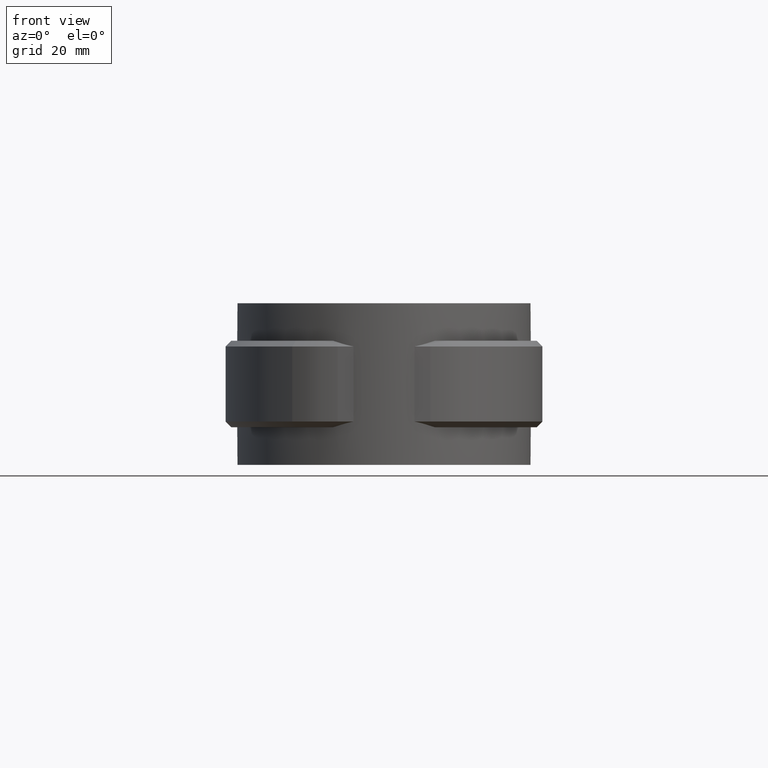
[diagram: clean part render]
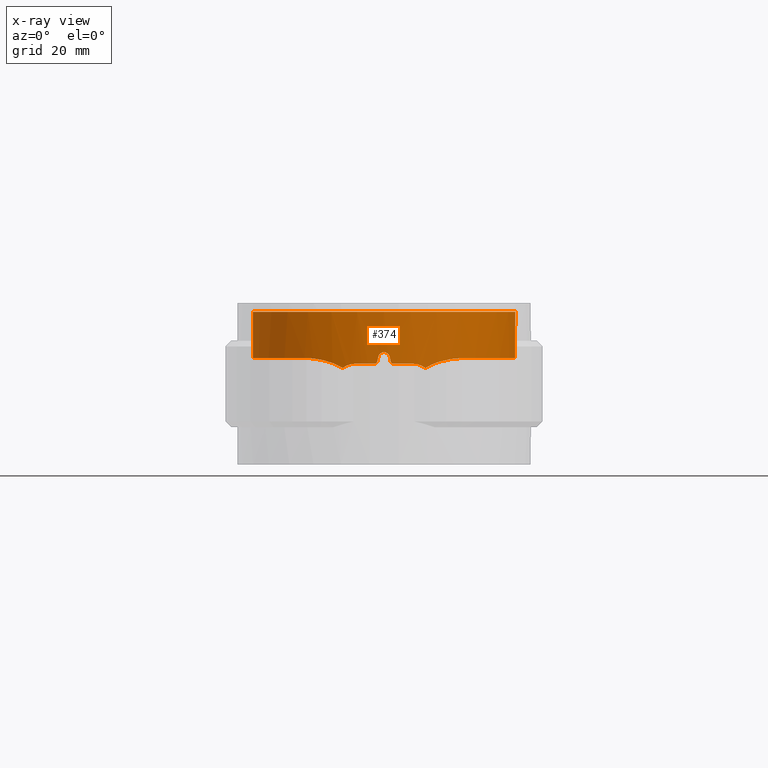
[diagram: x-ray — body ghosted, one internal face saturated and labeled with its STEP entity id]
A machine part, front view, then the same camera in x-ray: the body is ghosted and one INTERNAL B-rep face — a face not visible from any outside direction — is saturated and labeled: STEP entity #374.
In plain terms, the highlighted cylindrical surface (partial cylindrical patch) has radius 22.8 mm, axis along (0, 0, 1).
Its self-contained STEP definition (entity closure, byte-faithful):
#374 = ADVANCED_FACE( '', ( #725 ), #726, .F. );
#725 = FACE_OUTER_BOUND( '', #1642, .T. );
#726 = CYLINDRICAL_SURFACE( '', #1643, 22.8000000000000 );
#1642 = EDGE_LOOP( '', ( #2991, #2992, #2993, #2994, #2995, #2996, #2997, #2998, #2999, #3000, #3001, #3002, #3003, #3004, #3005, #3006 ) );
#1643 = AXIS2_PLACEMENT_3D( '', #3007, #3008, #3009 );
#2991 = ORIENTED_EDGE( '', *, *, #6664, .T. );
#2992 = ORIENTED_EDGE( '', *, *, #6633, .T. );
#2993 = ORIENTED_EDGE( '', *, *, #6637, .T. );
#2994 = ORIENTED_EDGE( '', *, *, #6668, .T. );
#2995 = ORIENTED_EDGE( '', *, *, #6669, .T. );
#2996 = ORIENTED_EDGE( '', *, *, #6670, .T. );
#2997 = ORIENTED_EDGE( '', *, *, #6671, .T. );
#2998 = ORIENTED_EDGE( '', *, *, #6672, .T. );
#2999 = ORIENTED_EDGE( '', *, *, #6673, .T. );
#3000 = ORIENTED_EDGE( '', *, *, #6674, .T. );
#3001 = ORIENTED_EDGE( '', *, *, #6665, .T. );
#3002 = ORIENTED_EDGE( '', *, *, #6657, .T. );
#3003 = ORIENTED_EDGE( '', *, *, #6675, .F. );
#3004 = ORIENTED_EDGE( '', *, *, #6624, .T. );
#3005 = ORIENTED_EDGE( '', *, *, #6676, .T. );
#3006 = ORIENTED_EDGE( '', *, *, #6653, .T. );
#3007 = CARTESIAN_POINT( '', ( 0.000000000000000, 0.000000000000000, 0.000000000000000 ) );
#3008 = DIRECTION( '', ( 0.000000000000000, 0.000000000000000, 1.00000000000000 ) );
#3009 = DIRECTION( '', ( 1.00000000000000, -6.12303176911189E-017, 0.000000000000000 ) );
#6624 = EDGE_CURVE( '', #7597, #7595, #7598, .T. );
#6633 = EDGE_CURVE( '', #7614, #7612, #7615, .T. );
#6637 = EDGE_CURVE( '', #7612, #7619, #7621, .T. );
#6653 = EDGE_CURVE( '', #7649, #7647, #7650, .T. );
#6657 = EDGE_CURVE( '', #7656, #7657, #7658, .T. );
#6664 = EDGE_CURVE( '', #7647, #7614, #7669, .T. );
#6665 = EDGE_CURVE( '', #7670, #7656, #7671, .T. );
#6668 = EDGE_CURVE( '', #7619, #7675, #7676, .T. );
#6669 = EDGE_CURVE( '', #7675, #7677, #7678, .T. );
#6670 = EDGE_CURVE( '', #7677, #7679, #7680, .T. );
#6671 = EDGE_CURVE( '', #7679, #7681, #7682, .T. );
#6672 = EDGE_CURVE( '', #7681, #7683, #7684, .T. );
#6673 = EDGE_CURVE( '', #7683, #7685, #7686, .T. );
#6674 = EDGE_CURVE( '', #7685, #7670, #7687, .T. );
#6675 = EDGE_CURVE( '', #7597, #7657, #7688, .T. );
#6676 = EDGE_CURVE( '', #7595, #7649, #7689, .T. );
#7595 = VERTEX_POINT( '', #9323 );
#7597 = VERTEX_POINT( '', #9325 );
#7598 = CIRCLE( '', #9326, 22.8000000000000 );
#7612 = VERTEX_POINT( '', #9372 );
#7614 = VERTEX_POINT( '', #9375 );
#7615 = B_SPLINE_CURVE_WITH_KNOTS( '', 3, ( #9376, #9377, #9378, #9379, #9380, #9381, #9382, #9383, #9384, #9385 ), .UNSPECIFIED., .F., .F., ( 4, 2, 2, 2, 4 ), ( 0.00878224476626473, 0.00938128739669219, 0.00998033002711966, 0.0105793726575471, 0.0111784152879746 ), .UNSPECIFIED. );
#7619 = VERTEX_POINT( '', #9411 );
#7621 = CIRCLE( '', #9414, 22.8000000000000 );
#7647 = VERTEX_POINT( '', #9678 );
#7649 = VERTEX_POINT( '', #9686 );
#7650 = B_SPLINE_CURVE_WITH_KNOTS( '', 3, ( #9687, #9688, #9689, #9690, #9691, #9692, #9693, #9694, #9695, #9696, #9697, #9698, #9699, #9700, #9701, #9702, #9703, #9704, #9705, #9706, #9707, #9708, #9709, #9710, #9711, #9712, #9713, #9714, #9715, #9716, #9717, #9718, #9719, #9720, #9721, #9722, #9723, #9724, #9725, #9726, #9727, #9728, #9729, #9730 ), .UNSPECIFIED., .F., .F., ( 4, 2, 2, 2, 2, 2, 2, 2, 2, 2, 2, 2, 2, 2, 2, 2, 2, 2, 2, 2, 2, 4 ), ( 5.55382496713543E-018, 0.00316036493218765, 0.00632072986437529, 0.00790091233046911, 0.00948109479656293, 0.0126414597287506, 0.0142216421948444, 0.0158018246609382, 0.0189621895931258, 0.0221225545253135, 0.0237027369914073, 0.0252829194575011, 0.0284432843896887, 0.0300234668557825, 0.0316036493218763, 0.0347640142540640, 0.0379243791862516, 0.0395045616523454, 0.0410847441184392, 0.0442451090506269, 0.0474054739828145, 0.0505658389150021 ), .UNSPECIFIED. );
#7656 = VERTEX_POINT( '', #9766 );
#7657 = VERTEX_POINT( '', #9767 );
#7658 = B_SPLINE_CURVE_WITH_KNOTS( '', 3, ( #9768, #9769, #9770, #9771, #9772, #9773, #9774, #9775, #9776, #9777, #9778, #9779, #9780, #9781, #9782, #9783, #9784, #9785, #9786, #9787, #9788, #9789, #9790, #9791, #9792, #9793, #9794, #9795, #9796, #9797, #9798, #9799, #9800, #9801, #9802, #9803, #9804, #9805, #9806, #9807, #9808, #9809, #9810, #9811 ), .UNSPECIFIED., .F., .F., ( 4, 2, 2, 2, 2, 2, 2, 2, 2, 2, 2, 2, 2, 2, 2, 2, 2, 2, 2, 2, 2, 4 ), ( 8.67361737988404E-018, 0.00316036486799006, 0.00632072973598011, 0.00790091216997514, 0.00948109460397017, 0.0126414594719602, 0.0142216419059553, 0.0158018243399503, 0.0189621892079404, 0.0221225540759304, 0.0237027365099254, 0.0252829189439205, 0.0284432838119105, 0.0300234662459056, 0.0316036486799006, 0.0347640135478906, 0.0379243784158807, 0.0395045608498757, 0.0410847432838707, 0.0442451081518608, 0.0474054730198508, 0.0505658378878408 ), .UNSPECIFIED. );
#7669 = B_SPLINE_CURVE_WITH_KNOTS( '', 3, ( #9910, #9911, #9912, #9913, #9914, #9915, #9916, #9917, #9918, #9919 ), .UNSPECIFIED., .F., .F., ( 4, 2, 2, 2, 4 ), ( 1.73472347597681E-018, 0.00193736207508401, 0.00387472415016801, 0.00581208622525202, 0.00774944830033603 ), .UNSPECIFIED. );
#7670 = VERTEX_POINT( '', #9920 );
#7671 = B_SPLINE_CURVE_WITH_KNOTS( '', 3, ( #9921, #9922, #9923, #9924, #9925, #9926, #9927, #9928, #9929, #9930 ), .UNSPECIFIED., .F., .F., ( 4, 2, 2, 2, 4 ), ( 2.83169498770614E-005, 0.00195331296766432, 0.00387830898545157, 0.00580330500323883, 0.00772830102102609 ), .UNSPECIFIED. );
#7675 = VERTEX_POINT( '', #9960 );
#7676 = B_SPLINE_CURVE_WITH_KNOTS( '', 3, ( #9961, #9962, #9963, #9964, #9965, #9966 ), .UNSPECIFIED., .F., .F., ( 4, 2, 4 ), ( 8.20849171219253E-018, 0.000336161295859166, 0.000672322591718323 ), .UNSPECIFIED. );
#7677 = VERTEX_POINT( '', #9967 );
#7678 = ELLIPSE( '', #9968, 103.866719651455, 22.8000000000000 );
#7679 = VERTEX_POINT( '', #9969 );
#7680 = B_SPLINE_CURVE_WITH_KNOTS( '', 3, ( #9970, #9971, #9972, #9973, #9974, #9975, #9976, #9977, #9978, #9979 ), .UNSPECIFIED., .F., .F., ( 4, 2, 2, 2, 4 ), ( 0.000000000000000, 0.000671637729633645, 0.00134327545926729, 0.00201491318890094, 0.00268655091853458 ), .UNSPECIFIED. );
#7681 = VERTEX_POINT( '', #9980 );
#7682 = ELLIPSE( '', #9981, 103.866772636280, 22.8000000000000 );
#7683 = VERTEX_POINT( '', #9982 );
#7684 = B_SPLINE_CURVE_WITH_KNOTS( '', 3, ( #9983, #9984, #9985, #9986, #9987, #9988 ), .UNSPECIFIED., .F., .F., ( 4, 2, 4 ), ( 4.33680868994202E-019, 0.000336168727832305, 0.000672337455664609 ), .UNSPECIFIED. );
#7685 = VERTEX_POINT( '', #9989 );
#7686 = CIRCLE( '', #9990, 22.8000000000000 );
#7687 = B_SPLINE_CURVE_WITH_KNOTS( '', 3, ( #9991, #9992, #9993, #9994, #9995, #9996 ), .UNSPECIFIED., .F., .F., ( 4, 2, 4 ), ( 3.46944695195361E-018, 0.00120052443283091, 0.00240104886566181 ), .UNSPECIFIED. );
#7688 = LINE( '', #9997, #9998 );
#7689 = LINE( '', #9999, #10000 );
#9323 = CARTESIAN_POINT( '', ( 5.97580645161292, 22.0029483763622, 0.000000000000000 ) );
#9325 = CARTESIAN_POINT( '', ( -5.97580645161290, 22.0029483763623, 0.000000000000000 ) );
#9326 = AXIS2_PLACEMENT_3D( '', #13062, #13063, #13064 );
#9372 = CARTESIAN_POINT( '', ( 5.00000000000000, -22.2449994380760, -9.00000000000000 ) );
#9375 = CARTESIAN_POINT( '', ( 7.16637408003806, -21.6444700222703, -9.75103231278736 ) );
#9376 = CARTESIAN_POINT( '', ( 7.16637408003805, -21.6444700222703, -9.75103231278736 ) );
#9377 = CARTESIAN_POINT( '', ( 7.01425588643786, -21.6948355834782, -9.63115279828793 ) );
#9378 = CARTESIAN_POINT( '', ( 6.85295634183912, -21.7464683795382, -9.52435394654657 ) );
#9379 = CARTESIAN_POINT( '', ( 6.51144351892544, -21.8511555965640, -9.33717608310341 ) );
#9380 = CARTESIAN_POINT( '', ( 6.33248877281890, -21.9037786169752, -9.25780582647430 ) );
#9381 = CARTESIAN_POINT( '', ( 5.96742728007836, -22.0060387943018, -9.13081109964244 ) );
#9382 = CARTESIAN_POINT( '', ( 5.78002781723296, -22.0560807326356, -9.08244496513620 ) );
#9383 = CARTESIAN_POINT( '', ( 5.39505285277653, -22.1533930486568, -9.01688945689441 ) );
#9384 = CARTESIAN_POINT( '', ( 5.19771451107907, -22.2005592231797, -8.99999999999996 ) );
#9385 = CARTESIAN_POINT( '', ( 5.00000000000000, -22.2449994380760, -8.99999999999996 ) );
#9411 = CARTESIAN_POINT( '', ( 1.64999999999995, -22.7402176770584, -9.00000000000000 ) );
#9414 = AXIS2_PLACEMENT_3D( '', #13072, #13073, #13074 );
#9678 = CARTESIAN_POINT( '', ( 13.7403132788403, -18.1946088443617, -7.99613165905231 ) );
#9686 = CARTESIAN_POINT( '', ( 5.97580645161293, 22.0029483763622, -7.99792274593644 ) );
#9687 = CARTESIAN_POINT( '', ( 5.97580645161292, 22.0029483763622, -7.99792274593643 ) );
#9688 = CARTESIAN_POINT( '', ( 7.00706932084616, 21.7228664890687, -7.99974108944640 ) );
#9689 = CARTESIAN_POINT( '', ( 8.00645735417318, 21.3739878850307, -8.00214990998096 ) );
#9690 = CARTESIAN_POINT( '', ( 9.94408312691223, 20.5442431897282, -8.00476178818277 ) );
#9691 = CARTESIAN_POINT( '', ( 10.8823133957161, 20.0633609846742, -8.00497282518821 ) );
#9692 = CARTESIAN_POINT( '', ( 12.2430095255404, 19.2413491592588, -8.00345652086372 ) );
#9693 = CARTESIAN_POINT( '', ( 12.6900139518466, 18.9496176507492, -8.00266635514630 ) );
#9694 = CARTESIAN_POINT( '', ( 13.5622094530326, 18.3355102999541, -8.00079834740691 ) );
#9695 = CARTESIAN_POINT( '', ( 13.9851161146033, 18.0148862009231, -7.99972855455461 ) );
#9696 = CARTESIAN_POINT( '', ( 15.2152740445848, 17.0133425884738, -7.99680741343072 ) );
#9697 = CARTESIAN_POINT( '', ( 15.9841435890300, 16.2929370912140, -7.99562330512741 ) );
#9698 = CARTESIAN_POINT( '', ( 17.0611861404304, 15.1338722346538, -7.99672081252180 ) );
#9699 = CARTESIAN_POINT( '', ( 17.4074445292754, 14.7343944626592, -7.99737925611983 ) );
#9700 = CARTESIAN_POINT( '', ( 18.0739881849697, 13.9087187156337, -7.99878552387162 ) );
#9701 = CARTESIAN_POINT( '', ( 18.3954551197841, 13.4807545787487, -7.99953502146771 ) );
#9702 = CARTESIAN_POINT( '', ( 19.3093266800891, 12.1706185326540, -8.00135620592728 ) );
#9703 = CARTESIAN_POINT( '', ( 19.8514039679572, 11.2637292492656, -8.00191201317008 ) );
#9704 = CARTESIAN_POINT( '', ( 20.8054978729404, 9.38515286816685, -8.00103267409770 ) );
#9705 = CARTESIAN_POINT( '', ( 21.2175103464900, 8.41346370554556, -7.99959899350508 ) );
#9706 = CARTESIAN_POINT( '', ( 21.7354243056323, 6.90605599898476, -7.99749390876978 ) );
#9707 = CARTESIAN_POINT( '', ( 21.8916885317676, 6.39348173512684, -7.99682090294667 ) );
#9708 = CARTESIAN_POINT( '', ( 22.1658921726410, 5.36617737874717, -7.99606247929512 ) );
#9709 = CARTESIAN_POINT( '', ( 22.2843961271079, 4.85019111278998, -7.99605015812071 ) );
#9710 = CARTESIAN_POINT( '', ( 22.5852860896576, 3.29537715142151, -7.99716707034857 ) );
#9711 = CARTESIAN_POINT( '', ( 22.7133075354067, 2.24972633103369, -7.99903725830331 ) );
#9712 = CARTESIAN_POINT( '', ( 22.7963429937952, 0.667568760406958, -8.00094914107124 ) );
#9713 = CARTESIAN_POINT( '', ( 22.8057911336355, 0.137894630343192, -8.00145609369805 ) );
#9714 = CARTESIAN_POINT( '', ( 22.7873956130596, -0.926134619802860, -8.00200910999270 ) );
#9715 = CARTESIAN_POINT( '', ( 22.7593332623956, -1.46102001110504, -8.00205224481040 ) );
#9716 = CARTESIAN_POINT( '', ( 22.6203364144395, -3.04757290054383, -8.00146140200287 ) );
#9717 = CARTESIAN_POINT( '', ( 22.4549607105987, -4.08958634719982, -8.00003837652921 ) );
#9718 = CARTESIAN_POINT( '', ( 21.9821298444200, -6.14295893757979, -7.99710833962922 ) );
#9719 = CARTESIAN_POINT( '', ( 21.6746828609332, -7.15431988870321, -7.99566042331772 ) );
#9720 = CARTESIAN_POINT( '', ( 21.1031704656760, -8.64755681360937, -7.99657280536962 ) );
#9721 = CARTESIAN_POINT( '', ( 20.8946513960471, -9.13972860623065, -7.99728942277803 ) );
#9722 = CARTESIAN_POINT( '', ( 20.4472309774139, -10.1010811953062, -7.99890297403525 ) );
#9723 = CARTESIAN_POINT( '', ( 20.2076698278872, -10.5720422673882, -7.99980108527739 ) );
#9724 = CARTESIAN_POINT( '', ( 19.4422174402775, -11.9562607578770, -8.00211263206494 ) );
#9725 = CARTESIAN_POINT( '', ( 18.8697803840625, -12.8409902735609, -8.00304953615582 ) );
#9726 = CARTESIAN_POINT( '', ( 17.5993498686224, -14.5334967282571, -8.00249163433791 ) );
#9727 = CARTESIAN_POINT( '', ( 16.8967834783585, -15.3450393180827, -8.00097094016415 ) );
#9728 = CARTESIAN_POINT( '', ( 15.3946539132057, -16.8515920458767, -7.99753927102060 ) );
#9729 = CARTESIAN_POINT( '', ( 14.5930863030060, -17.5506066232635, -7.99563827640232 ) );
#9730 = CARTESIAN_POINT( '', ( 13.7403132788403, -18.1946088443617, -7.99613165905228 ) );
#9766 = CARTESIAN_POINT( '', ( -13.7403132788403, -18.1946088443617, -7.99613165905231 ) );
#9767 = CARTESIAN_POINT( '', ( -5.97580645161292, 22.0029483763622, -7.99792274593643 ) );
#9768 = CARTESIAN_POINT( '', ( -13.7403132788403, -18.1946088443617, -7.99613165905236 ) );
#9769 = CARTESIAN_POINT( '', ( -14.5930834263837, -17.5506087956484, -7.99563827806670 ) );
#9770 = CARTESIAN_POINT( '', ( -15.3906486917055, -16.8546328739851, -7.99753069504204 ) );
#9771 = CARTESIAN_POINT( '', ( -16.8798722143979, -15.3629629464473, -8.00093173950597 ) );
#9772 = CARTESIAN_POINT( '', ( -17.5715175161079, -14.5672567540315, -8.00245074451895 ) );
#9773 = CARTESIAN_POINT( '', ( -18.5281937268547, -13.2976252206676, -8.00291302767572 ) );
#9774 = CARTESIAN_POINT( '', ( -18.8343946341181, -12.8604059870090, -8.00278618128618 ) );
#9775 = CARTESIAN_POINT( '', ( -19.4151404291410, -11.9656502331101, -8.00201042801520 ) );
#9776 = CARTESIAN_POINT( '', ( -19.6882170958425, -11.5105909860249, -8.00136614999011 ) );
#9777 = CARTESIAN_POINT( '', ( -20.4568843140168, -10.1229577300940, -7.99905553188257 ) );
#9778 = CARTESIAN_POINT( '', ( -20.9021484121884, -9.16803321959865, -7.99692872811099 ) );
#9779 = CARTESIAN_POINT( '', ( -21.4700501310727, -7.69123577258092, -7.99597048991702 ) );
#9780 = CARTESIAN_POINT( '', ( -21.6426253785093, -7.19154163365840, -7.99614099888838 ) );
#9781 = CARTESIAN_POINT( '', ( -21.9537201076207, -6.17702823203756, -7.99706878435517 ) );
#9782 = CARTESIAN_POINT( '', ( -22.0926785076646, -5.66012988980023, -7.99779769487248 ) );
#9783 = CARTESIAN_POINT( '', ( -22.4528868028263, -4.10389208791089, -8.00001721378508 ) );
#9784 = CARTESIAN_POINT( '', ( -22.6182236873752, -3.06035864928465, -8.00144425911394 ) );
#9785 = CARTESIAN_POINT( '', ( -22.8040605193045, -0.961593295675504, -8.00225036940757 ) );
#9786 = CARTESIAN_POINT( '', ( -22.8245558164347, 0.0936389949096296, -8.00162935983983 ) );
#9787 = CARTESIAN_POINT( '', ( -22.7438210941655, 1.68549136939970, -7.99972537205413 ) );
#9788 = CARTESIAN_POINT( '', ( -22.6979502865467, 2.21938957969020, -7.99894730032411 ) );
#9789 = CARTESIAN_POINT( '', ( -22.5698374264861, 3.27491616060159, -7.99749089673554 ) );
#9790 = CARTESIAN_POINT( '', ( -22.4876516094096, 3.79791936293934, -7.99681226931579 ) );
#9791 = CARTESIAN_POINT( '', ( -22.1878482157753, 5.35294845183517, -7.99567686815619 ) );
#9792 = CARTESIAN_POINT( '', ( -21.9172354990226, 6.37105953994790, -7.99675196647342 ) );
#9793 = CARTESIAN_POINT( '', ( -21.4050655068216, 7.87032868080932, -7.99883806294950 ) );
#9794 = CARTESIAN_POINT( '', ( -21.2165710854876, 8.36541904974247, -7.99957369218222 ) );
#9795 = CARTESIAN_POINT( '', ( -20.8032299840425, 9.34605514291354, -8.00077380325338 ) );
#9796 = CARTESIAN_POINT( '', ( -20.5779822680080, 9.83201289123302, -8.00123589503360 ) );
#9797 = CARTESIAN_POINT( '', ( -19.8581137218977, 11.2526728501043, -8.00191838661475 ) );
#9798 = CARTESIAN_POINT( '', ( -19.3165634692609, 12.1581394912058, -8.00136399908830 ) );
#9799 = CARTESIAN_POINT( '', ( -18.1130214638858, 13.8877080037858, -7.99897865017672 ) );
#9800 = CARTESIAN_POINT( '', ( -17.4510366483796, 14.7118145611112, -7.99714689764745 ) );
#9801 = CARTESIAN_POINT( '', ( -16.3645222566268, 15.8847868496329, -7.99599721942000 ) );
#9802 = CARTESIAN_POINT( '', ( -15.9877061298077, 16.2638971008974, -7.99594674402666 ) );
#9803 = CARTESIAN_POINT( '', ( -15.2144414335429, 16.9894634425859, -7.99687922954629 ) );
#9804 = CARTESIAN_POINT( '', ( -14.8167170268377, 17.3373265905974, -7.99775539037914 ) );
#9805 = CARTESIAN_POINT( '', ( -13.5908157166982, 18.3368949171994, -8.00066181357384 ) );
#9806 = CARTESIAN_POINT( '', ( -12.7300668271740, 18.9447891038280, -8.00288351944455 ) );
#9807 = CARTESIAN_POINT( '', ( -10.9207049270570, 20.0424010415167, -8.00495910870672 ) );
#9808 = CARTESIAN_POINT( '', ( -9.96644367212142, 20.5339114972580, -8.00478309967740 ) );
#9809 = CARTESIAN_POINT( '', ( -8.01130051801773, 21.3726597515798, -8.00216514660278 ) );
#9810 = CARTESIAN_POINT( '', ( -7.00706921275141, 21.7228665184263, -7.99974108925581 ) );
#9811 = CARTESIAN_POINT( '', ( -5.97580645161292, 22.0029483763622, -7.99792274593644 ) );
#9910 = CARTESIAN_POINT( '', ( 13.7403132788403, -18.1946088443617, -7.99613165905232 ) );
#9911 = CARTESIAN_POINT( '', ( 13.2233227012275, -18.5850328737747, -8.00635038740200 ) );
#9912 = CARTESIAN_POINT( '', ( 12.6925207162920, -18.9513402323818, -8.04271058161101 ) );
#9913 = CARTESIAN_POINT( '', ( 11.6043684850159, -19.6364969075690, -8.17397728454729 ) );
#9914 = CARTESIAN_POINT( '', ( 11.0465501393091, -19.9552967744925, -8.26904838836337 ) );
#9915 = CARTESIAN_POINT( '', ( 9.92312518737973, -20.5370817268163, -8.53219744297830 ) );
#9916 = CARTESIAN_POINT( '', ( 9.35262265026631, -20.8022620999570, -8.70128347144573 ) );
#9917 = CARTESIAN_POINT( '', ( 8.23682263888038, -21.2687661073511, -9.13687929521583 ) );
#9918 = CARTESIAN_POINT( '', ( 7.68810367303703, -21.4717280041840, -9.40119366473263 ) );
#9919 = CARTESIAN_POINT( '', ( 7.16637408003806, -21.6444700222703, -9.75103231278737 ) );
#9920 = CARTESIAN_POINT( '', ( -7.16637408002730, -21.6444700222659, -9.75103231277880 ) );
#9921 = CARTESIAN_POINT( '', ( -7.16637408003450, -21.6444700222715, -9.75103231278974 ) );
#9922 = CARTESIAN_POINT( '', ( -7.68812961837106, -21.4717194138158, -9.40117626744298 ) );
#9923 = CARTESIAN_POINT( '', ( -8.23685887320656, -21.2687520224603, -9.13686293516964 ) );
#9924 = CARTESIAN_POINT( '', ( -9.35265473448141, -20.8022476215339, -8.70127316083438 ) );
#9925 = CARTESIAN_POINT( '', ( -9.92322718583123, -20.5370247819937, -8.53217855902436 ) );
#9926 = CARTESIAN_POINT( '', ( -11.0462136999804, -19.9554751276989, -8.26912218837511 ) );
#9927 = CARTESIAN_POINT( '', ( -11.6034945449698, -19.6370269177414, -8.17410052328080 ) );
#9928 = CARTESIAN_POINT( '', ( -12.6923664494027, -18.9514576151103, -8.04271139503229 ) );
#9929 = CARTESIAN_POINT( '', ( -13.2233281666092, -18.5850287463951, -8.00635027937437 ) );
#9930 = CARTESIAN_POINT( '', ( -13.7403132788403, -18.1946088443617, -7.99613165905229 ) );
#9960 = CARTESIAN_POINT( '', ( 1.16219499999999, -22.7703601812087, -8.60975599999999 ) );
#9961 = CARTESIAN_POINT( '', ( 1.64999999999995, -22.7402176770584, -8.99999999999995 ) );
#9962 = CARTESIAN_POINT( '', ( 1.53663400737483, -22.7484433629550, -9.00000000048651 ) );
#9963 = CARTESIAN_POINT( '', ( 1.42653151968993, -22.7555026090554, -8.96146316159700 ) );
#9964 = CARTESIAN_POINT( '', ( 1.24917315362263, -22.7659275585175, -8.81972532877712 ) );
#9965 = CARTESIAN_POINT( '', ( 1.18714555999585, -22.7690867092107, -8.72064737998176 ) );
#9966 = CARTESIAN_POINT( '', ( 1.16219499999999, -22.7703601812087, -8.60975599999999 ) );
#9967 = CARTESIAN_POINT( '', ( 0.975609757981813, -22.7791173138937, -7.78048781325256 ) );
#9968 = AXIS2_PLACEMENT_3D( '', #13075, #13076, #13077 );
#9969 = CARTESIAN_POINT( '', ( -0.975610000000027, -22.7791173035283, -7.78048800000004 ) );
#9970 = CARTESIAN_POINT( '', ( 0.975609757981815, -22.7791173138937, -7.78048781325255 ) );
#9971 = CARTESIAN_POINT( '', ( 0.925759588395910, -22.7812523532464, -7.55893159411572 ) );
#9972 = CARTESIAN_POINT( '', ( 0.802000817328015, -22.7865804853366, -7.36098155361606 ) );
#9973 = CARTESIAN_POINT( '', ( 0.447419876514687, -22.7962995018888, -7.07730539049672 ) );
#9974 = CARTESIAN_POINT( '', ( 0.227103542121356, -22.8000000105057, -6.99999977974729 ) );
#9975 = CARTESIAN_POINT( '', ( -0.227105651546827, -22.7999999894943, -7.00000021338653 ) );
#9976 = CARTESIAN_POINT( '', ( -0.447456957138064, -22.7962986217078, -7.07732845584016 ) );
#9977 = CARTESIAN_POINT( '', ( -0.801998732632666, -22.7865804062704, -7.36098616675677 ) );
#9978 = CARTESIAN_POINT( '', ( -0.925759869228264, -22.7812523417492, -7.55893175534198 ) );
#9979 = CARTESIAN_POINT( '', ( -0.975610000000027, -22.7791173035282, -7.78048800000004 ) );
#9980 = CARTESIAN_POINT( '', ( -1.16219512100914, -22.7703601750324, -8.60975609337373 ) );
#9981 = AXIS2_PLACEMENT_3D( '', #13078, #13079, #13080 );
#9982 = CARTESIAN_POINT( '', ( -1.65000000000003, -22.7402176770584, -9.00000000000000 ) );
#9983 = CARTESIAN_POINT( '', ( -1.16219512100916, -22.7703601750324, -8.60975609337372 ) );
#9984 = CARTESIAN_POINT( '', ( -1.18714567156632, -22.7690867033833, -8.72064743362803 ) );
#9985 = CARTESIAN_POINT( '', ( -1.24916548935342, -22.7659279956545, -8.81971786715871 ) );
#9986 = CARTESIAN_POINT( '', ( -1.42653234939263, -22.7555025736469, -8.96146508929475 ) );
#9987 = CARTESIAN_POINT( '', ( -1.53663404090793, -22.7484433605219, -8.99999999999994 ) );
#9988 = CARTESIAN_POINT( '', ( -1.65000000000003, -22.7402176770584, -8.99999999999994 ) );
#9989 = CARTESIAN_POINT( '', ( -5.00000000000005, -22.2449994380760, -9.00000000000000 ) );
#9990 = AXIS2_PLACEMENT_3D( '', #13081, #13082, #13083 );
#9991 = CARTESIAN_POINT( '', ( -5.00000000000005, -22.2449994380760, -8.99999999999997 ) );
#9992 = CARTESIAN_POINT( '', ( -5.39617178538589, -22.1559520576774, -8.99999999999997 ) );
#9993 = CARTESIAN_POINT( '', ( -5.77884815150913, -22.0588421179006, -9.06535478898938 ) );
#9994 = CARTESIAN_POINT( '', ( -6.51875769563441, -21.8516223573051, -9.32245893329784 ) );
#9995 = CARTESIAN_POINT( '', ( -6.85894876562372, -21.7462569822881, -9.50876019158768 ) );
#9996 = CARTESIAN_POINT( '', ( -7.16637408002888, -21.6444700222734, -9.75103231278004 ) );
#9997 = CARTESIAN_POINT( '', ( -5.97580645161290, 22.0029483763623, 0.000000000000000 ) );
#9998 = VECTOR( '', #13084, 1000.00000000000 );
#9999 = CARTESIAN_POINT( '', ( 5.97580645161292, 22.0029483763622, 0.000000000000000 ) );
#10000 = VECTOR( '', #13085, 1000.00000000000 );
#13062 = CARTESIAN_POINT( '', ( 0.000000000000000, 0.000000000000000, 0.000000000000000 ) );
#13063 = DIRECTION( '', ( 0.000000000000000, 0.000000000000000, 1.00000000000000 ) );
#13064 = DIRECTION( '', ( 1.00000000000000, -6.12303176911189E-017, 0.000000000000000 ) );
#13072 = CARTESIAN_POINT( '', ( 0.000000000000000, 0.000000000000000, -9.00000000000000 ) );
#13073 = DIRECTION( '', ( 6.12303176911189E-017, 0.000000000000000, -1.00000000000000 ) );
#13074 = DIRECTION( '', ( -1.00000000000000, 0.000000000000000, -6.12303176911189E-017 ) );
#13075 = CARTESIAN_POINT( '', ( 0.000000000000000, 0.000000000000000, -3.44444212055029 ) );
#13076 = DIRECTION( '', ( -0.975609781292647, 0.000000000000000, -0.219512083143762 ) );
#13077 = DIRECTION( '', ( 0.219512083143762, 0.000000000000000, -0.975609781292647 ) );
#13078 = CARTESIAN_POINT( '', ( 0.000000000000000, 0.000000000000000, -3.44443890776446 ) );
#13079 = DIRECTION( '', ( 0.975609806487711, 0.000000000000000, -0.219511971165610 ) );
#13080 = DIRECTION( '', ( -0.219511971165610, 0.000000000000000, -0.975609806487711 ) );
#13081 = CARTESIAN_POINT( '', ( 0.000000000000000, 0.000000000000000, -9.00000000000000 ) );
#13082 = DIRECTION( '', ( 6.12303176911189E-017, 0.000000000000000, -1.00000000000000 ) );
#13083 = DIRECTION( '', ( -1.00000000000000, 0.000000000000000, -6.12303176911189E-017 ) );
#13084 = DIRECTION( '', ( 0.000000000000000, 0.000000000000000, -1.00000000000000 ) );
#13085 = DIRECTION( '', ( 0.000000000000000, 0.000000000000000, -1.00000000000000 ) );